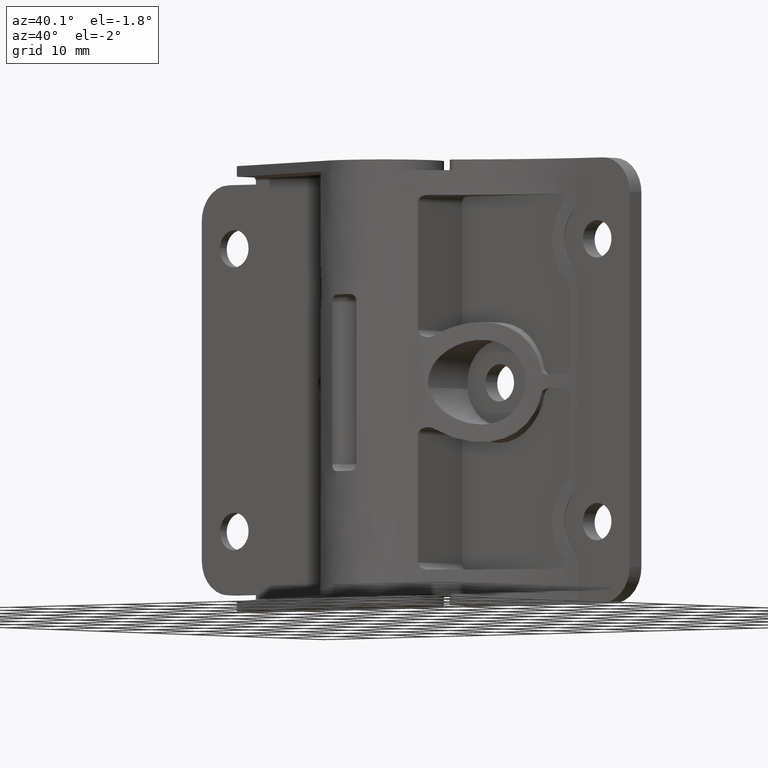
[diagram: clean part render]
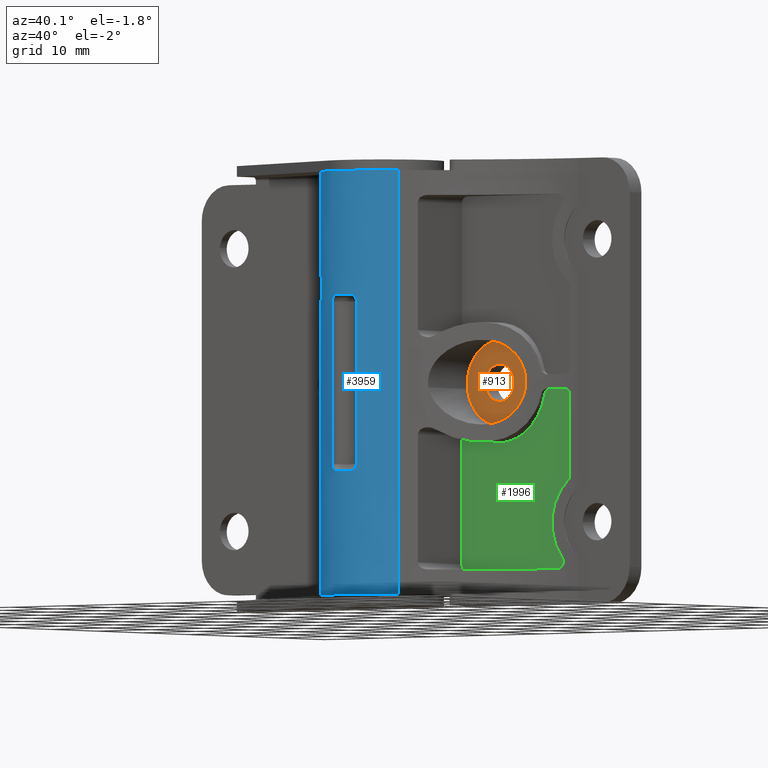
[diagram: same view with three faces highlighted in distinct colors, each labeled with its STEP entity id]
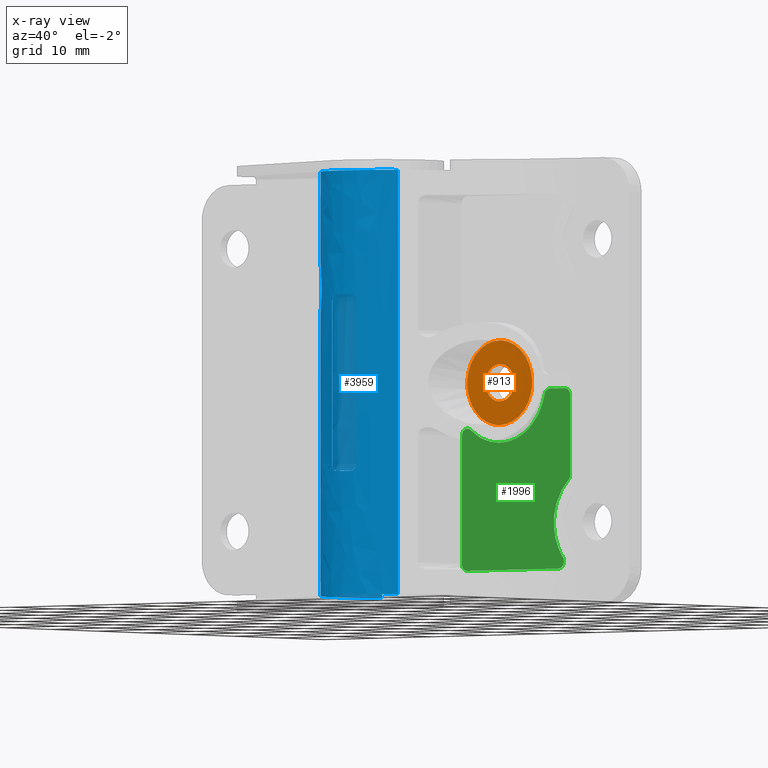
[diagram: x-ray of the same camera — body ghosted, the three highlighted faces saturated]
A machine part, auxiliary view with three faces highlighted in distinct colors.
The next image is the same camera in x-ray (body ghosted, the three faces saturated) — at least one of them is partly hidden behind the body in this view.
Their STEP definitions:

[orange] entity #913 — the highlighted face is a freeform B-spline surface patch.
#62=CARTESIAN_POINT('',(10.046401907588461,6.400002000006103,30.755238458302848));
#63=VERTEX_POINT('',#62);
#64=CARTESIAN_POINT('',(16.0,6.400002000000000,25.500000000000000));
#65=VERTEX_POINT('',#64);
#66=CARTESIAN_POINT('',(10.046401907588459,6.400002000006103,30.755238458302856));
#67=CARTESIAN_POINT('',(10.703802597964113,6.400002000000002,25.500000000000000));
#68=CARTESIAN_POINT('',(16.0,6.400002000000000,25.500000000000000));
#76=(BOUNDED_CURVE()B_SPLINE_CURVE(2,(#66,#67,#68),.UNSPECIFIED.,.F.,.U.)B_SPLINE_CURVE_WITH_KNOTS((3,3),(0.271473745674619,0.500000000000000),.UNSPECIFIED.)CURVE()GEOMETRIC_REPRESENTATION_ITEM()RATIONAL_B_SPLINE_CURVE((0.954005785981864,0.732264839149030,1.0))REPRESENTATION_ITEM(''));
#77=EDGE_CURVE('',#63,#65,#76,.T.);
#175=CARTESIAN_POINT('',(21.999771538383801,6.400001999999999,31.552359213130789));
#176=VERTEX_POINT('',#175);
#182=CARTESIAN_POINT('',(16.0,6.400002000000000,25.500000000000000));
#183=CARTESIAN_POINT('',(22.000000000000007,6.400002000000001,25.500000000000007));
#184=CARTESIAN_POINT('',(22.0,6.400002000000000,31.500000000000000));
#185=CARTESIAN_POINT('',(22.000000000000004,6.400002000000000,31.526180105064775));
#186=CARTESIAN_POINT('',(21.999771538383804,6.400001999999999,31.552359213130782));
#194=(BOUNDED_CURVE()B_SPLINE_CURVE(2,(#182,#183,#184,#185,#186),.UNSPECIFIED.,.F.,.U.)B_SPLINE_CURVE_WITH_KNOTS((3,2,3),(0.500000000000000,0.750000000000000,0.751539894343240),.UNSPECIFIED.)CURVE()GEOMETRIC_REPRESENTATION_ITEM()RATIONAL_B_SPLINE_CURVE((1.0,0.707106781186548,1.0,0.998195901556703,0.996414028081306))REPRESENTATION_ITEM(''));
#195=EDGE_CURVE('',#65,#176,#194,.T.);
#222=CARTESIAN_POINT('',(16.0,6.400002000000000,37.500000000000000));
#223=VERTEX_POINT('',#222);
#224=CARTESIAN_POINT('',(16.0,6.400002000000000,37.500000000000000));
#225=CARTESIAN_POINT('',(10.000000000000002,6.400002000000001,37.499999999999993));
#226=CARTESIAN_POINT('',(10.0,6.400002000000000,31.500000000000000));
#227=CARTESIAN_POINT('',(9.999999999999998,6.400002000000001,31.126173708063597));
#228=CARTESIAN_POINT('',(10.046401907588459,6.400002000006103,30.755238458302852));
#236=(BOUNDED_CURVE()B_SPLINE_CURVE(2,(#224,#225,#226,#227,#228),.UNSPECIFIED.,.F.,.U.)B_SPLINE_CURVE_WITH_KNOTS((3,2,3),(0.0,0.250000000000000,0.271473745674619),.UNSPECIFIED.)CURVE()GEOMETRIC_REPRESENTATION_ITEM()RATIONAL_B_SPLINE_CURVE((1.0,0.707106781186548,1.0,0.974841942037517,0.954005785981864))REPRESENTATION_ITEM(''));
#237=EDGE_CURVE('',#223,#63,#236,.T.);
#239=CARTESIAN_POINT('',(21.999771538383797,6.400001999999999,31.552359213130785));
#240=CARTESIAN_POINT('',(21.947867263291190,6.400002000000000,37.499999999999986));
#241=CARTESIAN_POINT('',(16.0,6.400002000000000,37.500000000000000));
#249=(BOUNDED_CURVE()B_SPLINE_CURVE(2,(#239,#240,#241),.UNSPECIFIED.,.F.,.U.)B_SPLINE_CURVE_WITH_KNOTS((3,3),(0.751539894343240,1.0),.UNSPECIFIED.)CURVE()GEOMETRIC_REPRESENTATION_ITEM()RATIONAL_B_SPLINE_CURVE((0.996414028081307,0.708910879629844,1.0))REPRESENTATION_ITEM(''));
#250=EDGE_CURVE('',#176,#223,#249,.T.);
#732=CARTESIAN_POINT('',(16.0,6.400002000000000,34.149999999999999));
#733=VERTEX_POINT('',#732);
#734=CARTESIAN_POINT('',(13.358169065614099,6.400001999999999,31.707916603766350));
#735=VERTEX_POINT('',#734);
#736=CARTESIAN_POINT('',(16.0,6.400002000000000,34.149999999999999));
#737=CARTESIAN_POINT('',(13.550365197268640,6.400002000000001,34.149999999999991));
#738=CARTESIAN_POINT('',(13.358169065614103,6.400001999999999,31.707916603766353));
#746=(BOUNDED_CURVE()B_SPLINE_CURVE(2,(#736,#737,#738),.UNSPECIFIED.,.F.,.U.)B_SPLINE_CURVE_WITH_KNOTS((3,3),(0.0,0.236331300621403),.UNSPECIFIED.)CURVE()GEOMETRIC_REPRESENTATION_ITEM()RATIONAL_B_SPLINE_CURVE((1.0,0.723120658618510,0.969723356148100))REPRESENTATION_ITEM(''));
#747=EDGE_CURVE('',#733,#735,#746,.T.);
#788=CARTESIAN_POINT('',(18.641830934385901,6.400002000000000,31.292083396233650));
#789=VERTEX_POINT('',#788);
#795=CARTESIAN_POINT('',(18.641830934385897,6.400002000000000,31.292083396233654));
#796=CARTESIAN_POINT('',(18.649999999999999,6.400002000000000,31.395881216341714));
#797=CARTESIAN_POINT('',(18.649999999999999,6.400002000000000,31.500000000000000));
#798=CARTESIAN_POINT('',(18.649999999999999,6.400002000000001,34.149999999999999));
#799=CARTESIAN_POINT('',(16.0,6.400002000000000,34.149999999999999));
#807=(BOUNDED_CURVE()B_SPLINE_CURVE(2,(#795,#796,#797,#798,#799),.UNSPECIFIED.,.F.,.U.)B_SPLINE_CURVE_WITH_KNOTS((3,2,3),(0.736331300621404,0.750000000000000,1.0),.UNSPECIFIED.)CURVE()GEOMETRIC_REPRESENTATION_ITEM()RATIONAL_B_SPLINE_CURVE((0.969723356148101,0.983986122568038,1.0,0.707106781186548,1.0))REPRESENTATION_ITEM(''));
#808=EDGE_CURVE('',#789,#733,#807,.T.);
#831=CARTESIAN_POINT('',(16.0,6.400002000000000,28.850000000000001));
#832=VERTEX_POINT('',#831);
#833=CARTESIAN_POINT('',(13.358169065614099,6.400001999999999,31.707916603766346));
#834=CARTESIAN_POINT('',(13.350000000000000,6.400002000000001,31.604118783658290));
#835=CARTESIAN_POINT('',(13.350000000000000,6.400002000000000,31.500000000000000));
#836=CARTESIAN_POINT('',(13.350000000000000,6.400002000000001,28.850000000000005));
#837=CARTESIAN_POINT('',(16.0,6.400002000000000,28.850000000000001));
#845=(BOUNDED_CURVE()B_SPLINE_CURVE(2,(#833,#834,#835,#836,#837),.UNSPECIFIED.,.F.,.U.)B_SPLINE_CURVE_WITH_KNOTS((3,2,3),(0.236331300621403,0.250000000000000,0.500000000000000),.UNSPECIFIED.)CURVE()GEOMETRIC_REPRESENTATION_ITEM()RATIONAL_B_SPLINE_CURVE((0.969723356148100,0.983986122568037,1.0,0.707106781186548,1.0))REPRESENTATION_ITEM(''));
#846=EDGE_CURVE('',#735,#832,#845,.T.);
#848=CARTESIAN_POINT('',(16.0,6.400002000000000,28.850000000000001));
#849=CARTESIAN_POINT('',(18.449634802731374,6.400002000000000,28.850000000000001));
#850=CARTESIAN_POINT('',(18.641830934385904,6.400002000000000,31.292083396233654));
#858=(BOUNDED_CURVE()B_SPLINE_CURVE(2,(#848,#849,#850),.UNSPECIFIED.,.F.,.U.)B_SPLINE_CURVE_WITH_KNOTS((3,3),(0.500000000000000,0.736331300621404),.UNSPECIFIED.)CURVE()GEOMETRIC_REPRESENTATION_ITEM()RATIONAL_B_SPLINE_CURVE((1.0,0.723120658618509,0.969723356148102))REPRESENTATION_ITEM(''));
#859=EDGE_CURVE('',#832,#789,#858,.T.);
#896=CARTESIAN_POINT('',(9.401022971201041,6.400002000000000,38.099399976741680));
#897=CARTESIAN_POINT('',(22.599140107107061,6.400002000000000,38.099399976741680));
#898=CARTESIAN_POINT('',(9.401022971201041,6.400002000000000,24.900599701393251));
#899=CARTESIAN_POINT('',(22.599140107107061,6.400002000000000,24.900599701393251));
#900=B_SPLINE_SURFACE_WITH_KNOTS('',1,1,((#896,#898),(#897,#899)),.UNSPECIFIED.,.F.,.F.,.U.,(2,2),(2,2),(0.0,13.198117135906021),(0.0,13.198800275348431),.UNSPECIFIED.);
#901=ORIENTED_EDGE('',*,*,#237,.T.);
#902=ORIENTED_EDGE('',*,*,#77,.T.);
#903=ORIENTED_EDGE('',*,*,#195,.T.);
#904=ORIENTED_EDGE('',*,*,#250,.T.);
#905=EDGE_LOOP('',(#901,#902,#903,#904));
#906=FACE_OUTER_BOUND('',#905,.T.);
#907=ORIENTED_EDGE('',*,*,#859,.F.);
#908=ORIENTED_EDGE('',*,*,#846,.F.);
#909=ORIENTED_EDGE('',*,*,#747,.F.);
#910=ORIENTED_EDGE('',*,*,#808,.F.);
#911=EDGE_LOOP('',(#907,#908,#909,#910));
#912=FACE_BOUND('',#911,.T.);
#913=ADVANCED_FACE('',(#906,#912),#900,.F.);

[blue] entity #3959 — the highlighted face is a freeform B-spline surface patch.
#2929=CARTESIAN_POINT('',(7.166333345818909,-5.444599744389260,1.499999999999946));
#2930=VERTEX_POINT('',#2929);
#2931=CARTESIAN_POINT('',(-6.000014999999790,6.708190516061500,1.499999999999946));
#2932=VERTEX_POINT('',#2931);
#2933=CARTESIAN_POINT('',(7.166333345818926,-5.444599744389270,1.499999999999946));
#2934=CARTESIAN_POINT('',(3.786943373532062,-9.892646650294932,1.499999999999946));
#2935=CARTESIAN_POINT('',(-1.698817181693789,-8.838213630773018,1.499999999999946));
#2936=CARTESIAN_POINT('',(-7.184577736919642,-7.783780611251105,1.499999999999946));
#2937=CARTESIAN_POINT('',(-8.674138269283501,-2.399859430331581,1.499999999999946));
#2938=CARTESIAN_POINT('',(-10.163698801647364,2.984061750587940,1.499999999999946));
#2939=CARTESIAN_POINT('',(-6.000014999999793,6.708190516061501,1.499999999999946));
#2947=(BOUNDED_CURVE()B_SPLINE_CURVE(2,(#2933,#2934,#2935,#2936,#2937,#2938,#2939),.UNSPECIFIED.,.F.,.U.)B_SPLINE_CURVE_WITH_KNOTS((3,2,2,3),(0.0,0.333333333333333,0.666666666666667,1.0),.UNSPECIFIED.)CURVE()GEOMETRIC_REPRESENTATION_ITEM()RATIONAL_B_SPLINE_CURVE((1.0,0.849641338482108,1.0,0.849641338482108,1.0,0.849641338482108,1.0))REPRESENTATION_ITEM(''));
#2948=EDGE_CURVE('',#2930,#2932,#2947,.T.);
#3211=CARTESIAN_POINT('',(-6.000014999999790,6.708190516061500,61.500000000000000));
#3212=VERTEX_POINT('',#3211);
#3213=CARTESIAN_POINT('',(7.166333345818909,-5.444599744389260,61.500000000000000));
#3214=VERTEX_POINT('',#3213);
#3215=CARTESIAN_POINT('',(-6.000014999999792,6.708190516061503,61.500000000000000));
#3216=CARTESIAN_POINT('',(-10.163698801647358,2.984061750587943,61.499999999999993));
#3217=CARTESIAN_POINT('',(-8.674138269283501,-2.399859430331578,61.500000000000000));
#3218=CARTESIAN_POINT('',(-7.184577736919644,-7.783780611251100,61.499999999999993));
#3219=CARTESIAN_POINT('',(-1.698817181693792,-8.838213630773016,61.500000000000000));
#3220=CARTESIAN_POINT('',(3.786943373532054,-9.892646650294930,61.499999999999993));
#3221=CARTESIAN_POINT('',(7.166333345818921,-5.444599744389277,61.500000000000000));
#3229=(BOUNDED_CURVE()B_SPLINE_CURVE(2,(#3215,#3216,#3217,#3218,#3219,#3220,#3221),.UNSPECIFIED.,.F.,.U.)B_SPLINE_CURVE_WITH_KNOTS((3,2,2,3),(0.0,0.333333333333333,0.666666666666667,1.0),.UNSPECIFIED.)CURVE()GEOMETRIC_REPRESENTATION_ITEM()RATIONAL_B_SPLINE_CURVE((1.0,0.849641338482108,1.0,0.849641338482108,1.0,0.849641338482108,1.0))REPRESENTATION_ITEM(''));
#3230=EDGE_CURVE('',#3212,#3214,#3229,.T.);
#3507=CARTESIAN_POINT('',(-2.232352668710555,-8.718750000000000,43.0));
#3508=VERTEX_POINT('',#3507);
#3509=CARTESIAN_POINT('',(-1.246982275545326,-8.913194444444470,44.0));
#3510=VERTEX_POINT('',#3509);
#3511=CARTESIAN_POINT('',(-2.232352668710555,-8.718750000000000,43.0));
#3512=CARTESIAN_POINT('',(-2.232352668710555,-8.718750000000002,43.066178663022590));
#3513=CARTESIAN_POINT('',(-2.226002815179270,-8.720382803195427,43.131238373840553));
#3514=CARTESIAN_POINT('',(-2.207339997479237,-8.725118413373629,43.227220311548393));
#3515=CARTESIAN_POINT('',(-2.199584451270300,-8.727079735601899,43.258944361349862));
#3516=CARTESIAN_POINT('',(-2.180930412050456,-8.731760132276698,43.321840728859229));
#3517=CARTESIAN_POINT('',(-2.169984765584259,-8.734490621267476,43.353080564381287));
#3518=CARTESIAN_POINT('',(-2.133110073708153,-8.743596662526899,43.443918933618249));
#3519=CARTESIAN_POINT('',(-2.103016533620425,-8.750923267008917,43.501346481491652));
#3520=CARTESIAN_POINT('',(-2.049644422911745,-8.763520518665361,43.582844715053888));
#3521=CARTESIAN_POINT('',(-2.030382225449291,-8.768009466938226,43.609340382672251));
#3522=CARTESIAN_POINT('',(-1.989396837984229,-8.777399513224696,43.660200045237410));
#3523=CARTESIAN_POINT('',(-1.967821381994838,-8.782267144553948,43.684405283318512));
#3524=CARTESIAN_POINT('',(-1.899932775604110,-8.797295277933817,43.753463146217364));
#3525=CARTESIAN_POINT('',(-1.850487676917362,-8.807877553656772,43.794791855944247));
#3526=CARTESIAN_POINT('',(-1.769827049384402,-8.824311028399087,43.849553503462452));
#3527=CARTESIAN_POINT('',(-1.741919621234566,-8.829867081309715,43.866521594863478));
#3528=CARTESIAN_POINT('',(-1.685128315321497,-8.840881132632687,43.897302505037338));
#3529=CARTESIAN_POINT('',(-1.627079343423585,-8.851855094078447,43.925126540747662));
#3530=CARTESIAN_POINT('',(-1.566535654118260,-8.862671718641636,43.947119038093220));
#3531=CARTESIAN_POINT('',(-1.504719722129327,-8.873376048938139,43.966151499832080));
#3532=CARTESIAN_POINT('',(-1.473024892047721,-8.878696101744836,43.974214271576130));
#3533=CARTESIAN_POINT('',(-1.377214400396778,-8.894237892830638,43.993527492518133));
#3534=CARTESIAN_POINT('',(-1.312517486564620,-8.904025874514293,44.000000000000007));
#3535=CARTESIAN_POINT('',(-1.246982275545330,-8.913194444444470,44.0));
#3536=B_SPLINE_CURVE_WITH_KNOTS('',3,(#3511,#3512,#3513,#3514,#3515,#3516,#3517,#3518,#3519,#3520,#3521,#3522,#3523,#3524,#3525,#3526,#3527,#3528,#3529,#3530,#3531,#3532,#3533,#3534,#3535),.UNSPECIFIED.,.F.,.U.,(4,2,2,2,2,2,2,2,2,1,2,2,4),(0.0,0.125000000000000,0.187499999999999,0.249999999999999,0.374999999999999,0.437499999999999,0.499999999999999,0.624999999999999,0.687499999999999,0.749999999999998,0.812499999999998,0.874999999999998,1.0),.UNSPECIFIED.);
#3537=EDGE_CURVE('',#3508,#3510,#3536,.T.);
#3539=CARTESIAN_POINT('',(2.232352668710555,-8.718750000000000,43.0));
#3540=VERTEX_POINT('',#3539);
#3556=CARTESIAN_POINT('',(1.246982275545326,-8.913194444444470,44.0));
#3557=VERTEX_POINT('',#3556);
#3558=CARTESIAN_POINT('',(1.246982275545326,-8.913194444444470,44.0));
#3559=CARTESIAN_POINT('',(1.312509978581444,-8.904026924903354,44.000000000000007));
#3560=CARTESIAN_POINT('',(1.376903183968997,-8.894281910241590,43.993529568136900));
#3561=CARTESIAN_POINT('',(1.471863389521804,-8.878887679873213,43.974478106682973));
#3562=CARTESIAN_POINT('',(1.503243339676461,-8.873626976486095,43.966558349626183));
#3563=CARTESIAN_POINT('',(1.565446251108543,-8.862864903122107,43.947500237381568));
#3564=CARTESIAN_POINT('',(1.596141759054887,-8.857383833322686,43.936381536478017));
#3565=CARTESIAN_POINT('',(1.685487433214378,-8.840972777680859,43.898912762576600));
#3566=CARTESIAN_POINT('',(1.742034647892404,-8.829966126085406,43.868311939617143));
#3567=CARTESIAN_POINT('',(1.822359997992937,-8.813611669643940,43.813941522090687));
#3568=CARTESIAN_POINT('',(1.848517582596940,-8.808157225544523,43.794274609459713));
#3569=CARTESIAN_POINT('',(1.898427721341293,-8.797535061022783,43.752690191986638));
#3570=CARTESIAN_POINT('',(1.922198502712542,-8.792365417532716,43.730788846720962));
#3571=CARTESIAN_POINT('',(1.990058011672518,-8.777346750994894,43.661835224420869));
#3572=CARTESIAN_POINT('',(2.030727485753101,-8.767982147874072,43.611565184786343));
#3573=CARTESIAN_POINT('',(2.102646489091741,-8.751013816052497,43.502073470757800));
#3574=CARTESIAN_POINT('',(2.132906747539142,-8.743645946295102,43.444278209033428));
#3575=CARTESIAN_POINT('',(2.169621659774645,-8.734580743252760,43.354044516880023));
#3576=CARTESIAN_POINT('',(2.180434108462056,-8.731884116142004,43.323325246868421));
#3577=CARTESIAN_POINT('',(2.199153769832699,-8.727188311003054,43.260576234543727));
#3578=CARTESIAN_POINT('',(2.207079894326419,-8.725184278378539,43.228403027144033));
#3579=CARTESIAN_POINT('',(2.226003705837275,-8.720382841826062,43.131537449681183));
#3580=CARTESIAN_POINT('',(2.232352668710555,-8.718750000000004,43.066169843749947));
#3581=CARTESIAN_POINT('',(2.232352668710555,-8.718750000000000,43.0));
#3582=B_SPLINE_CURVE_WITH_KNOTS('',3,(#3558,#3559,#3560,#3561,#3562,#3563,#3564,#3565,#3566,#3567,#3568,#3569,#3570,#3571,#3572,#3573,#3574,#3575,#3576,#3577,#3578,#3579,#3580,#3581),.UNSPECIFIED.,.F.,.U.,(4,2,2,2,2,2,2,2,2,2,2,4),(0.0,0.125000000000005,0.187500000000007,0.250000000000010,0.375000000000014,0.437500000000017,0.500000000000019,0.625000000000024,0.750000000000028,0.812500000000024,0.875000000000020,1.0),.UNSPECIFIED.);
#3583=EDGE_CURVE('',#3557,#3540,#3582,.T.);
#3626=CARTESIAN_POINT('',(-1.246982275545326,-8.913194444444470,19.0));
#3627=VERTEX_POINT('',#3626);
#3628=CARTESIAN_POINT('',(-2.232352668710555,-8.718750000000000,20.0));
#3629=VERTEX_POINT('',#3628);
#3630=CARTESIAN_POINT('',(-1.246982275545326,-8.913194444444470,19.0));
#3631=CARTESIAN_POINT('',(-1.312509978581443,-8.904026924903352,19.0));
#3632=CARTESIAN_POINT('',(-1.376903183969002,-8.894281910241585,19.006470431863100));
#3633=CARTESIAN_POINT('',(-1.471863389521826,-8.878887679873209,19.025521893317020));
#3634=CARTESIAN_POINT('',(-1.503243339676490,-8.873626976486090,19.033441650373831));
#3635=CARTESIAN_POINT('',(-1.565446251108589,-8.862864903122102,19.052499762618449));
#3636=CARTESIAN_POINT('',(-1.596141759054856,-8.857383833322695,19.063618463521959));
#3637=CARTESIAN_POINT('',(-1.685487433214371,-8.840972777680861,19.101087237423378));
#3638=CARTESIAN_POINT('',(-1.742034647892409,-8.829966126085408,19.131688060382860));
#3639=CARTESIAN_POINT('',(-1.822359997992959,-8.813611669643935,19.186058477909331));
#3640=CARTESIAN_POINT('',(-1.848517582596917,-8.808157225544528,19.205725390540270));
#3641=CARTESIAN_POINT('',(-1.898427721341281,-8.797535061022785,19.247309808013341));
#3642=CARTESIAN_POINT('',(-1.922198502712535,-8.792365417532722,19.269211153279031));
#3643=CARTESIAN_POINT('',(-1.990058011672524,-8.777346750994893,19.338164775579131));
#3644=CARTESIAN_POINT('',(-2.030727485753108,-8.767982147874072,19.388434815213682));
#3645=CARTESIAN_POINT('',(-2.102646489091763,-8.751013816052495,19.497926529242228));
#3646=CARTESIAN_POINT('',(-2.132906747539139,-8.743645946295102,19.555721790966562));
#3647=CARTESIAN_POINT('',(-2.169621659774645,-8.734580743252758,19.645955483119980));
#3648=CARTESIAN_POINT('',(-2.180434108462058,-8.731884116142000,19.676674753131589));
#3649=CARTESIAN_POINT('',(-2.199153769832702,-8.727188311003051,19.739423765456259));
#3650=CARTESIAN_POINT('',(-2.207079894326416,-8.725184278378537,19.771596972855949));
#3651=CARTESIAN_POINT('',(-2.226003705837275,-8.720382841826059,19.868462550318810));
#3652=CARTESIAN_POINT('',(-2.232352668710555,-8.718750000000000,19.933830156250060));
#3653=CARTESIAN_POINT('',(-2.232352668710555,-8.718750000000000,20.0));
#3654=B_SPLINE_CURVE_WITH_KNOTS('',3,(#3630,#3631,#3632,#3633,#3634,#3635,#3636,#3637,#3638,#3639,#3640,#3641,#3642,#3643,#3644,#3645,#3646,#3647,#3648,#3649,#3650,#3651,#3652,#3653),.UNSPECIFIED.,.F.,.U.,(4,2,2,2,2,2,2,2,2,2,2,4),(0.0,0.125000000000002,0.187500000000003,0.250000000000004,0.375000000000006,0.437500000000005,0.500000000000003,0.625000000000001,0.749999999999998,0.812499999999997,0.874999999999996,1.0),.UNSPECIFIED.);
#3655=EDGE_CURVE('',#3627,#3629,#3654,.T.);
#3657=CARTESIAN_POINT('',(1.246982275545326,-8.913194444444470,19.0));
#3658=VERTEX_POINT('',#3657);
#3674=CARTESIAN_POINT('',(2.232352668710555,-8.718750000000000,20.0));
#3675=VERTEX_POINT('',#3674);
#3676=CARTESIAN_POINT('',(2.232352668710555,-8.718750000000000,20.0));
#3677=CARTESIAN_POINT('',(2.232352668710555,-8.718750000000002,19.933821336977420));
#3678=CARTESIAN_POINT('',(2.226002815179271,-8.720382803195429,19.868761626159451));
#3679=CARTESIAN_POINT('',(2.207339997479235,-8.725118413373627,19.772779688451610));
#3680=CARTESIAN_POINT('',(2.199584451270301,-8.727079735601901,19.741055638650138));
#3681=CARTESIAN_POINT('',(2.180930412050456,-8.731760132276699,19.678159271140760));
#3682=CARTESIAN_POINT('',(2.169984765584264,-8.734490621267476,19.646919435618720));
#3683=CARTESIAN_POINT('',(2.133110073708155,-8.743596662526903,19.556081066381751));
#3684=CARTESIAN_POINT('',(2.103016533620425,-8.750923267008918,19.498653518508341));
#3685=CARTESIAN_POINT('',(2.049644422911737,-8.763520518665363,19.417155284946091));
#3686=CARTESIAN_POINT('',(2.030382225449313,-8.768009466938219,19.390659617327788));
#3687=CARTESIAN_POINT('',(1.989396837984243,-8.777399513224690,19.339799954762629));
#3688=CARTESIAN_POINT('',(1.967821381994850,-8.782267144553945,19.315594716681499));
#3689=CARTESIAN_POINT('',(1.899932775604110,-8.797295277933815,19.246536853782640));
#3690=CARTESIAN_POINT('',(1.850487676917350,-8.807877553656775,19.205208144055749));
#3691=CARTESIAN_POINT('',(1.769827049384373,-8.824311028399091,19.150446496537551));
#3692=CARTESIAN_POINT('',(1.741919621234589,-8.829867081309706,19.133478405136572));
#3693=CARTESIAN_POINT('',(1.685128315321508,-8.840881132632681,19.102697494962658));
#3694=CARTESIAN_POINT('',(1.627079326012544,-8.851855035446672,19.074873475002178));
#3695=CARTESIAN_POINT('',(1.566535654118242,-8.862671718641636,19.052880961906780));
#3696=CARTESIAN_POINT('',(1.504719722129293,-8.873376048938146,19.033848500167910));
#3697=CARTESIAN_POINT('',(1.473024892047753,-8.878696101744829,19.025785728423891));
#3698=CARTESIAN_POINT('',(1.377214400396785,-8.894237892830637,19.006472507481870));
#3699=CARTESIAN_POINT('',(1.312517486564618,-8.904025874514291,19.0));
#3700=CARTESIAN_POINT('',(1.246982275545328,-8.913194444444470,19.0));
#3701=B_SPLINE_CURVE_WITH_KNOTS('',3,(#3676,#3677,#3678,#3679,#3680,#3681,#3682,#3683,#3684,#3685,#3686,#3687,#3688,#3689,#3690,#3691,#3692,#3693,#3694,#3695,#3696,#3697,#3698,#3699,#3700),.UNSPECIFIED.,.F.,.U.,(4,2,2,2,2,2,2,2,2,1,2,2,4),(0.0,0.124999999999996,0.187499999999994,0.249999999999992,0.374999999999989,0.437499999999990,0.499999999999991,0.624999999999992,0.687499999999994,0.749999999999995,0.812499999999996,0.874999999999997,1.0),.UNSPECIFIED.);
#3702=EDGE_CURVE('',#3675,#3658,#3701,.T.);
#3727=CARTESIAN_POINT('',(-1.246982275545329,-8.913194444444470,19.0));
#3728=CARTESIAN_POINT('',(2.602085E-015,-9.087650954421475,19.0));
#3729=CARTESIAN_POINT('',(1.246982275545325,-8.913194444444471,19.0));
#3737=(BOUNDED_CURVE()B_SPLINE_CURVE(2,(#3727,#3728,#3729),.UNSPECIFIED.,.F.,.U.)CURVE()GEOMETRIC_REPRESENTATION_ITEM()QUASI_UNIFORM_CURVE()RATIONAL_B_SPLINE_CURVE((1.0,0.990354938271608,1.0))REPRESENTATION_ITEM(''));
#3738=EDGE_CURVE('',#3627,#3658,#3737,.T.);
#3749=CARTESIAN_POINT('',(-1.246982275545329,-8.913194444444470,44.0));
#3750=CARTESIAN_POINT('',(2.602085E-015,-9.087650954421475,44.0));
#3751=CARTESIAN_POINT('',(1.246982275545325,-8.913194444444471,44.0));
#3759=(BOUNDED_CURVE()B_SPLINE_CURVE(2,(#3749,#3750,#3751),.UNSPECIFIED.,.F.,.U.)CURVE()GEOMETRIC_REPRESENTATION_ITEM()QUASI_UNIFORM_CURVE()RATIONAL_B_SPLINE_CURVE((1.0,0.990354938271608,1.0))REPRESENTATION_ITEM(''));
#3760=EDGE_CURVE('',#3510,#3557,#3759,.T.);
#3784=CARTESIAN_POINT('',(-2.232352668710555,-8.718750000000000,43.0));
#3785=CARTESIAN_POINT('',(-2.232352668710555,-8.718750000000000,20.0));
#3786=QUASI_UNIFORM_CURVE('',1,(#3784,#3785),.UNSPECIFIED.,.F.,.U.);
#3787=EDGE_CURVE('',#3508,#3629,#3786,.T.);
#3790=CARTESIAN_POINT('',(2.232352668710555,-8.718750000000000,20.0));
#3791=CARTESIAN_POINT('',(2.232352668710555,-8.718750000000000,43.0));
#3792=QUASI_UNIFORM_CURVE('',1,(#3790,#3791),.UNSPECIFIED.,.F.,.U.);
#3793=EDGE_CURVE('',#3675,#3540,#3792,.T.);
#3887=CARTESIAN_POINT('',(-6.000014999999790,6.708190516061500,61.500000000000000));
#3888=CARTESIAN_POINT('',(-6.000014999999790,6.708190516061500,1.499999999999946));
#3889=QUASI_UNIFORM_CURVE('',1,(#3887,#3888),.UNSPECIFIED.,.F.,.U.);
#3890=EDGE_CURVE('',#3212,#2932,#3889,.T.);
#3921=CARTESIAN_POINT('',(-5.818035564490335,6.866619413534257,63.000000000000007));
#3922=CARTESIAN_POINT('',(-5.818035564490335,6.866619413534257,-0.037500000000058));
#3923=CARTESIAN_POINT('',(-13.787139678461211,0.114456761149112,63.000000000000014));
#3924=CARTESIAN_POINT('',(-13.787139678461211,0.114456761149112,-0.037500000000058));
#3925=CARTESIAN_POINT('',(-5.931235116935834,-6.769080438850398,63.000000000000007));
#3926=CARTESIAN_POINT('',(-5.931235116935834,-6.769080438850398,-0.037500000000058));
#3927=CARTESIAN_POINT('',(1.924669444589544,-13.652617638849907,63.000000000000014));
#3928=CARTESIAN_POINT('',(1.924669444589544,-13.652617638849907,-0.037500000000058));
#3929=CARTESIAN_POINT('',(7.571420304301442,-4.865551826423370,63.000000000000007));
#3930=CARTESIAN_POINT('',(7.571420304301442,-4.865551826423370,-0.037500000000058));
#3938=(BOUNDED_SURFACE()B_SPLINE_SURFACE(1,2,((#3921,#3923,#3925,#3927,#3929),(#3922,#3924,#3926,#3928,#3930)),.UNSPECIFIED.,.F.,.F.,.U.)B_SPLINE_SURFACE_WITH_KNOTS((2,2),(3,2,3),(0.0,63.037500000000072),(0.0,16.501091218604621,33.002182437209242),.UNSPECIFIED.)GEOMETRIC_REPRESENTATION_ITEM()RATIONAL_B_SPLINE_SURFACE(((1.0,0.652759752462722,1.0,0.652759752462722,1.0),(1.0,0.652759752462722,1.0,0.652759752462722,1.0)))REPRESENTATION_ITEM('')SURFACE());
#3939=ORIENTED_EDGE('',*,*,#2948,.F.);
#3940=CARTESIAN_POINT('',(7.166333345818909,-5.444599744389260,61.500000000000000));
#3941=CARTESIAN_POINT('',(7.166333345818909,-5.444599744389260,1.499999999999946));
#3942=QUASI_UNIFORM_CURVE('',1,(#3940,#3941),.UNSPECIFIED.,.F.,.U.);
#3943=EDGE_CURVE('',#3214,#2930,#3942,.T.);
#3944=ORIENTED_EDGE('',*,*,#3943,.F.);
#3945=ORIENTED_EDGE('',*,*,#3230,.F.);
#3946=ORIENTED_EDGE('',*,*,#3890,.T.);
#3947=EDGE_LOOP('',(#3939,#3944,#3945,#3946));
#3948=FACE_OUTER_BOUND('',#3947,.T.);
#3949=ORIENTED_EDGE('',*,*,#3787,.F.);
#3950=ORIENTED_EDGE('',*,*,#3537,.T.);
#3951=ORIENTED_EDGE('',*,*,#3760,.T.);
#3952=ORIENTED_EDGE('',*,*,#3583,.T.);
#3953=ORIENTED_EDGE('',*,*,#3793,.F.);
#3954=ORIENTED_EDGE('',*,*,#3702,.T.);
#3955=ORIENTED_EDGE('',*,*,#3738,.F.);
#3956=ORIENTED_EDGE('',*,*,#3655,.T.);
#3957=EDGE_LOOP('',(#3949,#3950,#3951,#3952,#3953,#3954,#3955,#3956));
#3958=FACE_BOUND('',#3957,.T.);
#3959=ADVANCED_FACE('',(#3948,#3958),#3938,.T.);

[green] entity #1996 — the highlighted face is a freeform B-spline surface patch.
#1831=CARTESIAN_POINT('',(8.001000038764090,6.400002000000000,31.773724950576060));
#1832=CARTESIAN_POINT('',(29.999000497677919,6.400002000000000,31.773724950576060));
#1833=CARTESIAN_POINT('',(8.001000038764090,6.400002000000000,3.726274365460567));
#1834=CARTESIAN_POINT('',(29.999000497677919,6.400002000000000,3.726274365460567));
#1835=B_SPLINE_SURFACE_WITH_KNOTS('',1,1,((#1831,#1833),(#1832,#1834)),.UNSPECIFIED.,.F.,.F.,.U.,(2,2),(2,2),(0.0,21.998000458913829),(0.0,28.047450585115492),.UNSPECIFIED.);
#1836=CARTESIAN_POINT('',(9.000000000000199,6.400002000000000,24.134535912733451));
#1837=VERTEX_POINT('',#1836);
#1838=CARTESIAN_POINT('',(9.000000000000210,6.400002000000000,6.000000157079550));
#1839=VERTEX_POINT('',#1838);
#1840=CARTESIAN_POINT('',(9.000000000000199,6.400002000000000,24.134535912733451));
#1841=CARTESIAN_POINT('',(9.000000000000210,6.400002000000000,6.000000157079550));
#1842=QUASI_UNIFORM_CURVE('',1,(#1840,#1841),.UNSPECIFIED.,.F.,.U.);
#1843=EDGE_CURVE('',#1837,#1839,#1842,.T.);
#1844=ORIENTED_EDGE('',*,*,#1843,.T.);
#1845=CARTESIAN_POINT('',(10.000000017453500,6.400002000000000,4.999999999999920));
#1846=VERTEX_POINT('',#1845);
#1847=CARTESIAN_POINT('',(9.000000000000213,6.400002000000000,6.000000157079550));
#1848=CARTESIAN_POINT('',(8.999999934935691,6.400002000000001,5.585786543586948));
#1849=CARTESIAN_POINT('',(9.292893169448293,6.400002000000000,5.292893268178737));
#1850=CARTESIAN_POINT('',(9.585786403960892,6.400002000000001,4.999999992770527));
#1851=CARTESIAN_POINT('',(10.000000017453500,6.400002000000000,4.999999999999920));
#1859=(BOUNDED_CURVE()B_SPLINE_CURVE(2,(#1847,#1848,#1849,#1850,#1851),.UNSPECIFIED.,.F.,.U.)B_SPLINE_CURVE_WITH_KNOTS((3,2,3),(0.0,0.500000000000000,1.0),.UNSPECIFIED.)CURVE()GEOMETRIC_REPRESENTATION_ITEM()RATIONAL_B_SPLINE_CURVE((1.0,0.923879515813571,1.0,0.923879515813571,1.0))REPRESENTATION_ITEM(''));
#1860=EDGE_CURVE('',#1839,#1846,#1859,.T.);
#1861=ORIENTED_EDGE('',*,*,#1860,.T.);
#1862=CARTESIAN_POINT('',(26.876099000000199,6.400002000000000,5.0));
#1863=VERTEX_POINT('',#1862);
#1864=CARTESIAN_POINT('',(10.000000017453500,6.400002000000000,4.999999999999920));
#1865=CARTESIAN_POINT('',(26.876099000000199,6.400002000000000,5.0));
#1866=QUASI_UNIFORM_CURVE('',1,(#1864,#1865),.UNSPECIFIED.,.F.,.U.);
#1867=EDGE_CURVE('',#1846,#1863,#1866,.T.);
#1868=ORIENTED_EDGE('',*,*,#1867,.T.);
#1869=CARTESIAN_POINT('',(27.667643824551700,6.400002000000000,6.611111111603821));
#1870=VERTEX_POINT('',#1869);
#1871=CARTESIAN_POINT('',(26.876099000000199,6.400002000000000,5.0));
#1872=CARTESIAN_POINT('',(27.498967344838025,6.400002000000000,4.999999999999920));
#1873=CARTESIAN_POINT('',(27.773626467993211,6.400002000000000,5.559041448435204));
#1874=CARTESIAN_POINT('',(28.048285591148410,6.400002000000000,6.118082896870489));
#1875=CARTESIAN_POINT('',(27.667643824551689,6.400002000000000,6.611111111603815));
#1883=(BOUNDED_CURVE()B_SPLINE_CURVE(2,(#1871,#1872,#1873,#1874,#1875),.UNSPECIFIED.,.F.,.U.)B_SPLINE_CURVE_WITH_KNOTS((3,2,3),(0.0,0.500000000000000,1.0),.UNSPECIFIED.)CURVE()GEOMETRIC_REPRESENTATION_ITEM()RATIONAL_B_SPLINE_CURVE((1.0,0.848810506404320,1.0,0.848810506404320,1.0))REPRESENTATION_ITEM(''));
#1884=EDGE_CURVE('',#1863,#1870,#1883,.T.);
#1885=ORIENTED_EDGE('',*,*,#1884,.T.);
#1886=CARTESIAN_POINT('',(28.666666551749099,6.400002000000000,17.462847837213801));
#1887=VERTEX_POINT('',#1886);
#1888=CARTESIAN_POINT('',(28.666666551749099,6.400002000000000,17.462847837213801));
#1889=CARTESIAN_POINT('',(23.119866777462242,6.400002000000000,12.501639010695177));
#1890=CARTESIAN_POINT('',(27.667643824551700,6.400002000000000,6.611111111603821));
#1898=(BOUNDED_CURVE()B_SPLINE_CURVE(2,(#1888,#1889,#1890),.UNSPECIFIED.,.F.,.U.)CURVE()GEOMETRIC_REPRESENTATION_ITEM()QUASI_UNIFORM_CURVE()RATIONAL_B_SPLINE_CURVE((1.0,0.732188860810954,1.0))REPRESENTATION_ITEM(''));
#1899=EDGE_CURVE('',#1887,#1870,#1898,.T.);
#1900=ORIENTED_EDGE('',*,*,#1899,.F.);
#1901=CARTESIAN_POINT('',(29.0,6.400002000000000,18.208206000000001));
#1902=VERTEX_POINT('',#1901);
#1903=CARTESIAN_POINT('',(28.666666551749099,6.400002000000000,17.462847837213801));
#1904=CARTESIAN_POINT('',(29.000000513674234,6.400002000000000,17.760990910686914));
#1905=CARTESIAN_POINT('',(29.0,6.400002000000000,18.208206000000001));
#1913=(BOUNDED_CURVE()B_SPLINE_CURVE(2,(#1903,#1904,#1905),.UNSPECIFIED.,.F.,.U.)CURVE()GEOMETRIC_REPRESENTATION_ITEM()QUASI_UNIFORM_CURVE()RATIONAL_B_SPLINE_CURVE((1.0,0.912870616352786,1.0))REPRESENTATION_ITEM(''));
#1914=EDGE_CURVE('',#1887,#1902,#1913,.T.);
#1915=ORIENTED_EDGE('',*,*,#1914,.T.);
#1916=CARTESIAN_POINT('',(29.0,6.400002000000000,29.500000000000000));
#1917=VERTEX_POINT('',#1916);
#1918=CARTESIAN_POINT('',(29.0,6.400002000000000,18.208206000000001));
#1919=CARTESIAN_POINT('',(29.0,6.400002000000000,29.500000000000000));
#1920=QUASI_UNIFORM_CURVE('',1,(#1918,#1919),.UNSPECIFIED.,.F.,.U.);
#1921=EDGE_CURVE('',#1902,#1917,#1920,.T.);
#1922=ORIENTED_EDGE('',*,*,#1921,.T.);
#1923=CARTESIAN_POINT('',(27.999999947640301,6.400002000000000,30.500000000000000));
#1924=VERTEX_POINT('',#1923);
#1925=CARTESIAN_POINT('',(29.0,6.400002000000000,29.500000000000000));
#1926=CARTESIAN_POINT('',(28.999999999999996,6.400002000000000,29.914213577708896));
#1927=CARTESIAN_POINT('',(28.707106762674599,6.400002000000000,30.207106799698501));
#1928=CARTESIAN_POINT('',(28.414213525349194,6.400002000000000,30.500000021688091));
#1929=CARTESIAN_POINT('',(27.999999947640301,6.400002000000000,30.500000000000000));
#1937=(BOUNDED_CURVE()B_SPLINE_CURVE(2,(#1925,#1926,#1927,#1928,#1929),.UNSPECIFIED.,.F.,.U.)B_SPLINE_CURVE_WITH_KNOTS((3,2,3),(0.0,0.500000000000000,1.0),.UNSPECIFIED.)CURVE()GEOMETRIC_REPRESENTATION_ITEM()RATIONAL_B_SPLINE_CURVE((1.0,0.923879527501989,1.0,0.923879527501989,1.0))REPRESENTATION_ITEM(''));
#1938=EDGE_CURVE('',#1917,#1924,#1937,.T.);
#1939=ORIENTED_EDGE('',*,*,#1938,.T.);
#1940=CARTESIAN_POINT('',(25.287079000000201,6.400002000000000,30.500000000000000));
#1941=VERTEX_POINT('',#1940);
#1942=CARTESIAN_POINT('',(27.999999947640301,6.400002000000000,30.500000000000000));
#1943=CARTESIAN_POINT('',(25.287079000000201,6.400002000000000,30.500000000000000));
#1944=QUASI_UNIFORM_CURVE('',1,(#1942,#1943),.UNSPECIFIED.,.F.,.U.);
#1945=EDGE_CURVE('',#1924,#1941,#1944,.T.);
#1946=ORIENTED_EDGE('',*,*,#1945,.T.);
#1947=CARTESIAN_POINT('',(24.309490804023199,6.400002000000000,29.710526290724999));
#1948=VERTEX_POINT('',#1947);
#1949=CARTESIAN_POINT('',(25.287079000000201,6.400002000000000,30.500000000000000));
#1950=CARTESIAN_POINT('',(24.479506125732833,6.400002000000002,30.500000000000000));
#1951=CARTESIAN_POINT('',(24.309490804023199,6.400002000000000,29.710526290724999));
#1959=(BOUNDED_CURVE()B_SPLINE_CURVE(2,(#1949,#1950,#1951),.UNSPECIFIED.,.F.,.U.)CURVE()GEOMETRIC_REPRESENTATION_ITEM()QUASI_UNIFORM_CURVE()RATIONAL_B_SPLINE_CURVE((1.0,0.777986597161224,1.0))REPRESENTATION_ITEM(''));
#1960=EDGE_CURVE('',#1941,#1948,#1959,.T.);
#1961=ORIENTED_EDGE('',*,*,#1960,.T.);
#1962=CARTESIAN_POINT('',(10.631579604835560,6.400002000000000,24.909851104809398));
#1963=VERTEX_POINT('',#1962);
#1964=CARTESIAN_POINT('',(10.631579604835560,6.400002000000000,24.909851104809398));
#1965=CARTESIAN_POINT('',(14.322748635306004,6.400002000000001,21.902976279146550));
#1966=CARTESIAN_POINT('',(18.814974009644850,6.400002000000000,23.479658169390859));
#1967=CARTESIAN_POINT('',(23.307199383983686,6.400002000000001,25.056340059635154));
#1968=CARTESIAN_POINT('',(24.309490804023199,6.400002000000000,29.710526290724999));
#1976=(BOUNDED_CURVE()B_SPLINE_CURVE(2,(#1964,#1965,#1966,#1967,#1968),.UNSPECIFIED.,.F.,.U.)B_SPLINE_CURVE_WITH_KNOTS((3,2,3),(0.0,0.500000000000000,1.0),.UNSPECIFIED.)CURVE()GEOMETRIC_REPRESENTATION_ITEM()RATIONAL_B_SPLINE_CURVE((1.0,0.872467234362024,1.0,0.872467234362024,1.0))REPRESENTATION_ITEM(''));
#1977=EDGE_CURVE('',#1963,#1948,#1976,.T.);
#1978=ORIENTED_EDGE('',*,*,#1977,.F.);
#1979=CARTESIAN_POINT('',(10.631579604835560,6.400002000000000,24.909851104809398));
#1980=CARTESIAN_POINT('',(10.141605039166535,6.400001999999999,25.308988780556646));
#1981=CARTESIAN_POINT('',(9.570802641584290,6.400002000000000,25.037747482119631));
#1982=CARTESIAN_POINT('',(9.000000244002047,6.400001999999999,24.766506183682623));
#1983=CARTESIAN_POINT('',(9.000000000000199,6.400002000000000,24.134535912733451));
#1991=(BOUNDED_CURVE()B_SPLINE_CURVE(2,(#1979,#1980,#1981,#1982,#1983),.UNSPECIFIED.,.F.,.U.)B_SPLINE_CURVE_WITH_KNOTS((3,2,3),(0.0,0.500000000000000,1.0),.UNSPECIFIED.)CURVE()GEOMETRIC_REPRESENTATION_ITEM()RATIONAL_B_SPLINE_CURVE((1.0,0.845339658287883,1.0,0.845339658287883,1.0))REPRESENTATION_ITEM(''));
#1992=EDGE_CURVE('',#1963,#1837,#1991,.T.);
#1993=ORIENTED_EDGE('',*,*,#1992,.T.);
#1994=EDGE_LOOP('',(#1844,#1861,#1868,#1885,#1900,#1915,#1922,#1939,#1946,#1961,#1978,#1993));
#1995=FACE_OUTER_BOUND('',#1994,.T.);
#1996=ADVANCED_FACE('',(#1995),#1835,.F.);